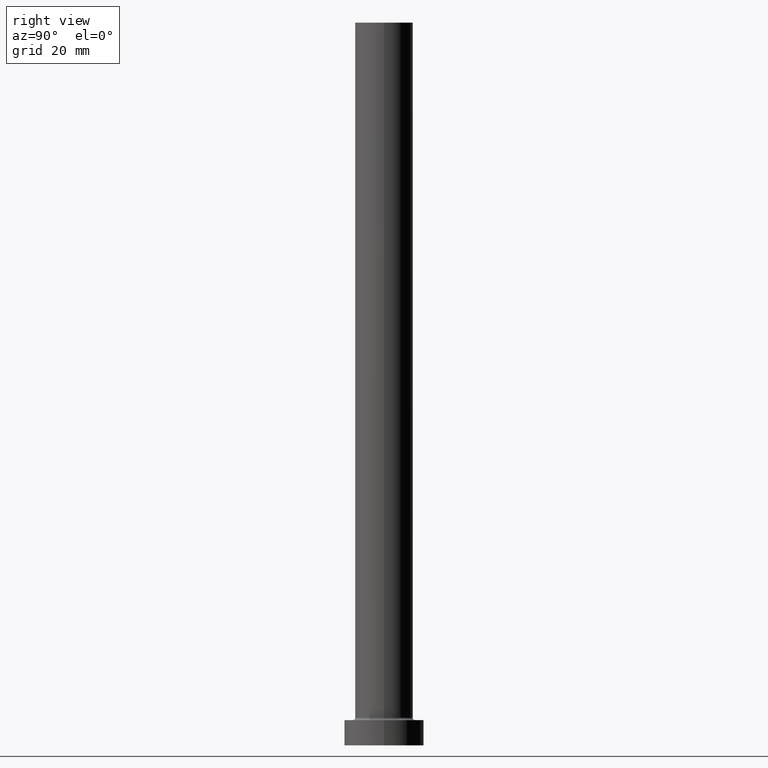
[diagram: clean part render]
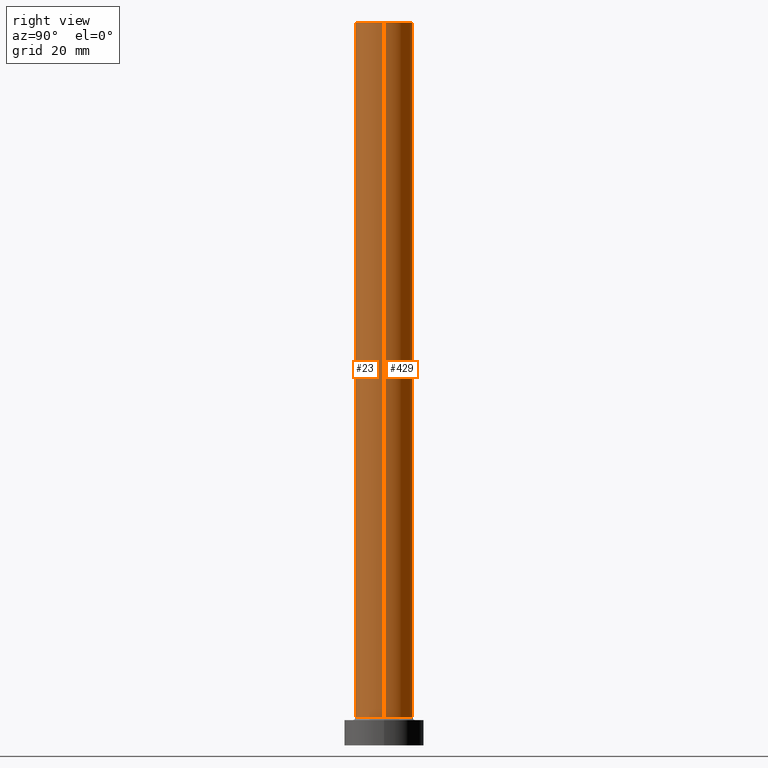
[diagram: same view with one multi-face feature highlighted, each face labeled with its STEP entity id]
A machine part, right view. The highlighted faces form ONE feature: a constant-radius fillet chain: 2 tangent blend faces with common blend radius 8 mm. The faces share edges in the B-rep.
Their STEP definitions:
[1] entity #429 (Cylinder):
#3 = LINE ( 'NONE', #73, #121 ) ;
#8 = CARTESIAN_POINT ( 'NONE',  ( 0.000000000000000000, 0.000000000000000000, 200.0000000000000000 ) ) ;
#17 = CARTESIAN_POINT ( 'NONE',  ( -8.000000000000000000, 0.000000000000000000, 7.700000000000012612 ) ) ;
#20 = ORIENTED_EDGE ( 'NONE', *, *, #151, .T. ) ;
#41 = EDGE_CURVE ( 'NONE', #307, #415, #168, .T. ) ;
#52 = VERTEX_POINT ( 'NONE', #106 ) ;
#71 = FACE_OUTER_BOUND ( 'NONE', #447, .T. ) ;
#73 = CARTESIAN_POINT ( 'NONE',  ( -8.000000000000000000, 0.000000000000000000, 200.0000000000000000 ) ) ;
#99 = DIRECTION ( 'NONE',  ( 1.000000000000000000, 0.000000000000000000, 0.000000000000000000 ) ) ;
#103 = AXIS2_PLACEMENT_3D ( 'NONE', #8, #363, #174 ) ;
#106 = CARTESIAN_POINT ( 'NONE',  ( 8.000000000000000000, 9.797174393178825657E-16, 7.700000000000012612 ) ) ;
#121 = VECTOR ( 'NONE', #367, 1000.000000000000000 ) ;
#123 = ORIENTED_EDGE ( 'NONE', *, *, #41, .F. ) ;
#126 = VERTEX_POINT ( 'NONE', #17 ) ;
#129 = LINE ( 'NONE', #382, #269 ) ;
#132 = CIRCLE ( 'NONE', #345, 8.000000000000000000 ) ;
#142 = CARTESIAN_POINT ( 'NONE',  ( -8.000000000000000000, 0.000000000000000000, 200.0000000000000000 ) ) ;
#145 = CYLINDRICAL_SURFACE ( 'NONE', #103, 8.000000000000000000 ) ;
#151 = EDGE_CURVE ( 'NONE', #307, #52, #129, .T. ) ;
#164 = DIRECTION ( 'NONE',  ( 0.000000000000000000, 0.000000000000000000, 1.000000000000000000 ) ) ;
#168 = CIRCLE ( 'NONE', #443, 8.000000000000000000 ) ;
#174 = DIRECTION ( 'NONE',  ( -1.000000000000000000, 0.000000000000000000, 0.000000000000000000 ) ) ;
#207 = ORIENTED_EDGE ( 'NONE', *, *, #386, .T. ) ;
#227 = ORIENTED_EDGE ( 'NONE', *, *, #405, .F. ) ;
#236 = DIRECTION ( 'NONE',  ( -0.000000000000000000, -0.000000000000000000, -1.000000000000000000 ) ) ;
#247 = CARTESIAN_POINT ( 'NONE',  ( 0.000000000000000000, 0.000000000000000000, 200.0000000000000000 ) ) ;
#269 = VECTOR ( 'NONE', #236, 1000.000000000000000 ) ;
#307 = VERTEX_POINT ( 'NONE', #387 ) ;
#330 = DIRECTION ( 'NONE',  ( 0.000000000000000000, 0.000000000000000000, 1.000000000000000000 ) ) ;
#345 = AXIS2_PLACEMENT_3D ( 'NONE', #402, #330, #398 ) ;
#363 = DIRECTION ( 'NONE',  ( -0.000000000000000000, -0.000000000000000000, -1.000000000000000000 ) ) ;
#367 = DIRECTION ( 'NONE',  ( -0.000000000000000000, -0.000000000000000000, -1.000000000000000000 ) ) ;
#382 = CARTESIAN_POINT ( 'NONE',  ( 8.000000000000000000, 9.797174393178825657E-16, 200.0000000000000000 ) ) ;
#386 = EDGE_CURVE ( 'NONE', #52, #126, #132, .T. ) ;
#387 = CARTESIAN_POINT ( 'NONE',  ( 8.000000000000000000, 9.797174393178825657E-16, 200.0000000000000000 ) ) ;
#398 = DIRECTION ( 'NONE',  ( 1.000000000000000000, 0.000000000000000000, 0.000000000000000000 ) ) ;
#402 = CARTESIAN_POINT ( 'NONE',  ( 0.000000000000000000, 0.000000000000000000, 7.700000000000012612 ) ) ;
#405 = EDGE_CURVE ( 'NONE', #415, #126, #3, .T. ) ;
#415 = VERTEX_POINT ( 'NONE', #142 ) ;
#429 = ADVANCED_FACE ( 'NONE', ( #71 ), #145, .T. ) ;
#443 = AXIS2_PLACEMENT_3D ( 'NONE', #247, #164, #99 ) ;
#447 = EDGE_LOOP ( 'NONE', ( #123, #20, #207, #227 ) ) ;
[2] entity #23 (Cylinder):
#3 = LINE ( 'NONE', #73, #121 ) ;
#17 = CARTESIAN_POINT ( 'NONE',  ( -8.000000000000000000, 0.000000000000000000, 7.700000000000012612 ) ) ;
#23 = ADVANCED_FACE ( 'NONE', ( #95 ), #60, .T. ) ;
#29 = DIRECTION ( 'NONE',  ( -0.000000000000000000, -0.000000000000000000, -1.000000000000000000 ) ) ;
#31 = DIRECTION ( 'NONE',  ( -1.000000000000000000, 0.000000000000000000, 0.000000000000000000 ) ) ;
#46 = CIRCLE ( 'NONE', #180, 8.000000000000000000 ) ;
#52 = VERTEX_POINT ( 'NONE', #106 ) ;
#57 = CARTESIAN_POINT ( 'NONE',  ( 0.000000000000000000, 0.000000000000000000, 7.700000000000012612 ) ) ;
#60 = CYLINDRICAL_SURFACE ( 'NONE', #177, 8.000000000000000000 ) ;
#73 = CARTESIAN_POINT ( 'NONE',  ( -8.000000000000000000, 0.000000000000000000, 200.0000000000000000 ) ) ;
#95 = FACE_OUTER_BOUND ( 'NONE', #344, .T. ) ;
#105 = CARTESIAN_POINT ( 'NONE',  ( 0.000000000000000000, 0.000000000000000000, 200.0000000000000000 ) ) ;
#106 = CARTESIAN_POINT ( 'NONE',  ( 8.000000000000000000, 9.797174393178825657E-16, 7.700000000000012612 ) ) ;
#107 = DIRECTION ( 'NONE',  ( 1.000000000000000000, 0.000000000000000000, 0.000000000000000000 ) ) ;
#121 = VECTOR ( 'NONE', #367, 1000.000000000000000 ) ;
#126 = VERTEX_POINT ( 'NONE', #17 ) ;
#129 = LINE ( 'NONE', #382, #269 ) ;
#142 = CARTESIAN_POINT ( 'NONE',  ( -8.000000000000000000, 0.000000000000000000, 200.0000000000000000 ) ) ;
#151 = EDGE_CURVE ( 'NONE', #307, #52, #129, .T. ) ;
#172 = ORIENTED_EDGE ( 'NONE', *, *, #405, .T. ) ;
#177 = AXIS2_PLACEMENT_3D ( 'NONE', #199, #29, #31 ) ;
#180 = AXIS2_PLACEMENT_3D ( 'NONE', #105, #289, #107 ) ;
#195 = DIRECTION ( 'NONE',  ( 0.000000000000000000, 0.000000000000000000, 1.000000000000000000 ) ) ;
#199 = CARTESIAN_POINT ( 'NONE',  ( 0.000000000000000000, 0.000000000000000000, 200.0000000000000000 ) ) ;
#217 = ORIENTED_EDGE ( 'NONE', *, *, #325, .T. ) ;
#236 = DIRECTION ( 'NONE',  ( -0.000000000000000000, -0.000000000000000000, -1.000000000000000000 ) ) ;
#268 = ORIENTED_EDGE ( 'NONE', *, *, #151, .F. ) ;
#269 = VECTOR ( 'NONE', #236, 1000.000000000000000 ) ;
#289 = DIRECTION ( 'NONE',  ( 0.000000000000000000, 0.000000000000000000, 1.000000000000000000 ) ) ;
#307 = VERTEX_POINT ( 'NONE', #387 ) ;
#325 = EDGE_CURVE ( 'NONE', #126, #52, #413, .T. ) ;
#344 = EDGE_LOOP ( 'NONE', ( #268, #350, #172, #217 ) ) ;
#350 = ORIENTED_EDGE ( 'NONE', *, *, #372, .F. ) ;
#367 = DIRECTION ( 'NONE',  ( -0.000000000000000000, -0.000000000000000000, -1.000000000000000000 ) ) ;
#372 = EDGE_CURVE ( 'NONE', #415, #307, #46, .T. ) ;
#382 = CARTESIAN_POINT ( 'NONE',  ( 8.000000000000000000, 9.797174393178825657E-16, 200.0000000000000000 ) ) ;
#387 = CARTESIAN_POINT ( 'NONE',  ( 8.000000000000000000, 9.797174393178825657E-16, 200.0000000000000000 ) ) ;
#405 = EDGE_CURVE ( 'NONE', #415, #126, #3, .T. ) ;
#413 = CIRCLE ( 'NONE', #432, 8.000000000000000000 ) ;
#414 = DIRECTION ( 'NONE',  ( 1.000000000000000000, 0.000000000000000000, 0.000000000000000000 ) ) ;
#415 = VERTEX_POINT ( 'NONE', #142 ) ;
#432 = AXIS2_PLACEMENT_3D ( 'NONE', #57, #195, #414 ) ;